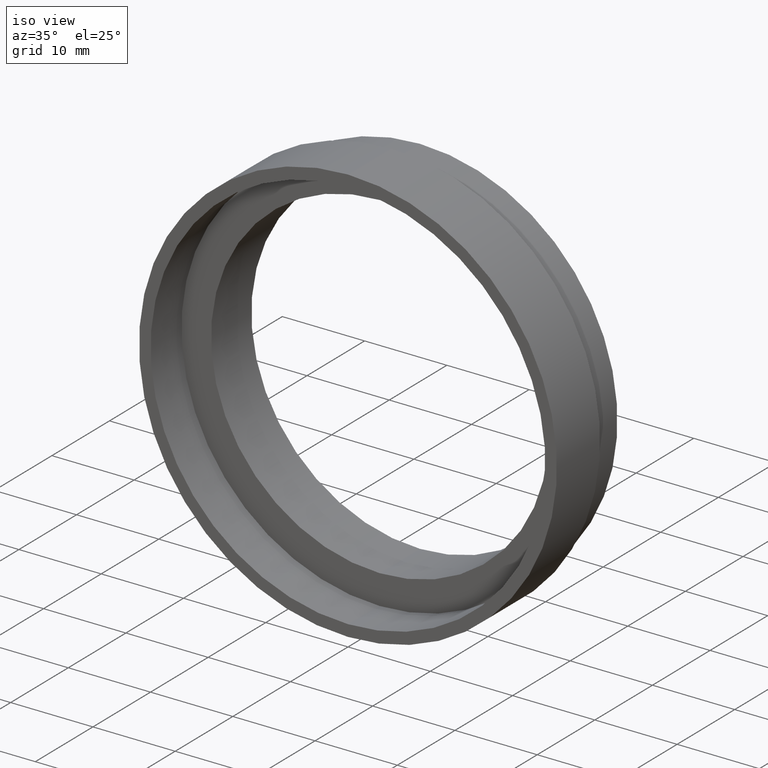
[diagram: clean part render]
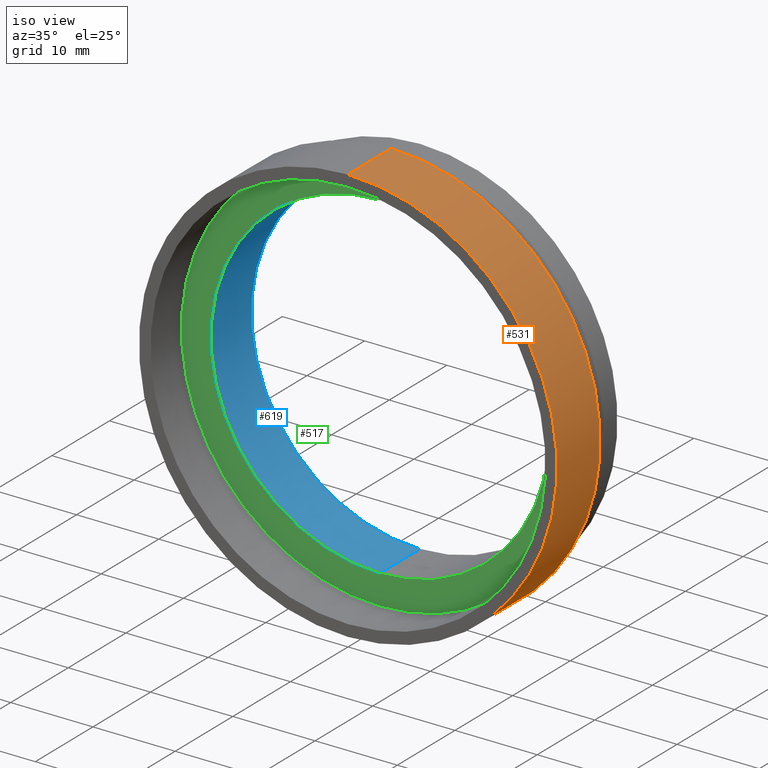
[diagram: same view with three faces highlighted in distinct colors, each labeled with its STEP entity id]
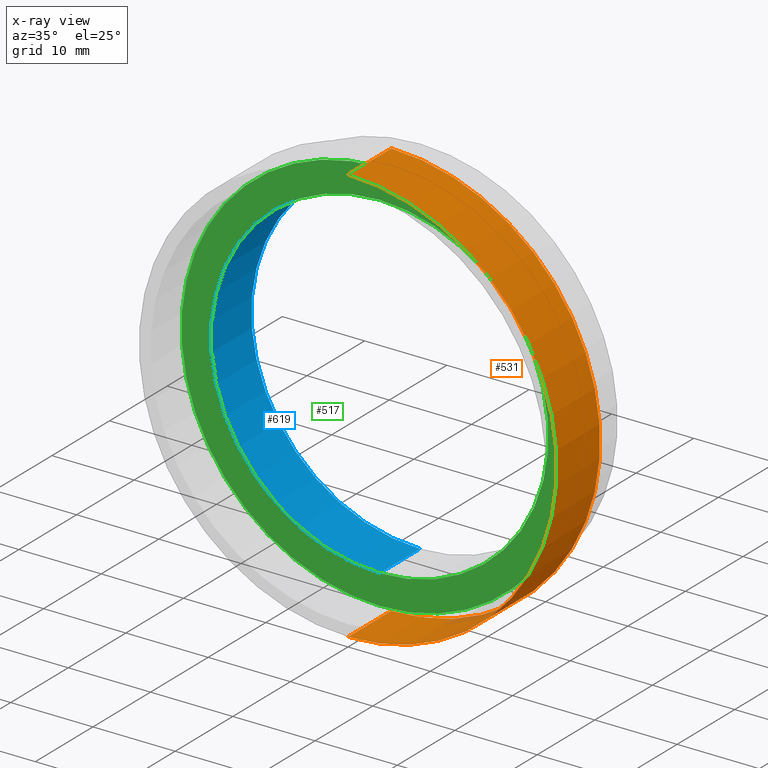
[diagram: x-ray of the same camera — body ghosted, the three highlighted faces saturated]
A machine part, iso view with three faces highlighted in distinct colors.
The next image is the same camera in x-ray (body ghosted, the three faces saturated) — at least one of them is partly hidden behind the body in this view.
Their STEP definitions:

[orange] entity #531 — the highlighted cylindrical surface (partial cylindrical patch) has radius 25.4 mm, axis along (-0, 1, -0).
#61 = CARTESIAN_POINT ( 'NONE',  ( 0.0000000000000000000, 7.499999999999978700, 0.0000000000000000000 ) ) ;
#68 = ORIENTED_EDGE ( 'NONE', *, *, #248, .F. ) ;
#73 = CARTESIAN_POINT ( 'NONE',  ( 0.0000000000000000000, 7.499999999999978700, 25.40000000000001600 ) ) ;
#93 = VERTEX_POINT ( 'NONE', #303 ) ;
#101 = AXIS2_PLACEMENT_3D ( 'NONE', #390, #588, #578 ) ;
#137 = VERTEX_POINT ( 'NONE', #585 ) ;
#142 = ORIENTED_EDGE ( 'NONE', *, *, #275, .T. ) ;
#144 = AXIS2_PLACEMENT_3D ( 'NONE', #61, #150, #153 ) ;
#150 = DIRECTION ( 'NONE',  ( -0.0000000000000000000, 1.000000000000000000, -0.0000000000000000000 ) ) ;
#153 = DIRECTION ( 'NONE',  ( 0.0000000000000000000, 0.0000000000000000000, 1.000000000000000000 ) ) ;
#213 = FACE_OUTER_BOUND ( 'NONE', #325, .T. ) ;
#220 = CARTESIAN_POINT ( 'NONE',  ( 3.110602869834279600E-015, 161.3761669434274500, -25.40000000000002000 ) ) ;
#239 = ORIENTED_EDGE ( 'NONE', *, *, #469, .T. ) ;
#240 = EDGE_CURVE ( 'NONE', #427, #137, #249, .T. ) ;
#248 = EDGE_CURVE ( 'NONE', #471, #427, #520, .T. ) ;
#249 = CIRCLE ( 'NONE', #144, 25.40000000000001600 ) ;
#254 = CYLINDRICAL_SURFACE ( 'NONE', #428, 25.40000000000002000 ) ;
#260 = DIRECTION ( 'NONE',  ( -0.0000000000000000000, 1.000000000000000000, -0.0000000000000000000 ) ) ;
#273 = CIRCLE ( 'NONE', #101, 25.40000000000002000 ) ;
#275 = EDGE_CURVE ( 'NONE', #471, #93, #273, .T. ) ;
#303 = CARTESIAN_POINT ( 'NONE',  ( 3.110602869834279600E-015, -2.775557561562891400E-014, -25.40000000000002000 ) ) ;
#306 = DIRECTION ( 'NONE',  ( -0.0000000000000000000, 1.000000000000000000, -0.0000000000000000000 ) ) ;
#325 = EDGE_LOOP ( 'NONE', ( #142, #239, #535, #68 ) ) ;
#326 = CARTESIAN_POINT ( 'NONE',  ( 0.0000000000000000000, 161.3761669434274500, 0.0000000000000000000 ) ) ;
#368 = VECTOR ( 'NONE', #306, 1000.000000000000000 ) ;
#375 = DIRECTION ( 'NONE',  ( 0.0000000000000000000, 0.0000000000000000000, 1.000000000000000000 ) ) ;
#390 = CARTESIAN_POINT ( 'NONE',  ( 0.0000000000000000000, -2.775557561562891400E-014, 0.0000000000000000000 ) ) ;
#427 = VERTEX_POINT ( 'NONE', #73 ) ;
#428 = AXIS2_PLACEMENT_3D ( 'NONE', #326, #610, #375 ) ;
#469 = EDGE_CURVE ( 'NONE', #93, #137, #478, .T. ) ;
#471 = VERTEX_POINT ( 'NONE', #545 ) ;
#478 = LINE ( 'NONE', #220, #613 ) ;
#520 = LINE ( 'NONE', #536, #368 ) ;
#531 = ADVANCED_FACE ( 'NONE', ( #213 ), #254, .T. ) ;
#535 = ORIENTED_EDGE ( 'NONE', *, *, #240, .F. ) ;
#536 = CARTESIAN_POINT ( 'NONE',  ( 0.0000000000000000000, 161.3761669434274500, 25.40000000000002000 ) ) ;
#545 = CARTESIAN_POINT ( 'NONE',  ( 0.0000000000000000000, -2.775557561562891400E-014, 25.40000000000002000 ) ) ;
#578 = DIRECTION ( 'NONE',  ( 0.0000000000000000000, 0.0000000000000000000, 1.000000000000000000 ) ) ;
#585 = CARTESIAN_POINT ( 'NONE',  ( 3.110602869834279200E-015, 7.499999999999978700, -25.40000000000001600 ) ) ;
#588 = DIRECTION ( 'NONE',  ( -0.0000000000000000000, 1.000000000000000000, -0.0000000000000000000 ) ) ;
#610 = DIRECTION ( 'NONE',  ( -0.0000000000000000000, 1.000000000000000000, -0.0000000000000000000 ) ) ;
#613 = VECTOR ( 'NONE', #260, 1000.000000000000000 ) ;

[blue] entity #619 — the highlighted cylindrical surface (partial cylindrical patch) has radius 20.5 mm, axis along (-0, 1, -0).
#3 = DIRECTION ( 'NONE',  ( -0.0000000000000000000, 1.000000000000000000, -0.0000000000000000000 ) ) ;
#10 = AXIS2_PLACEMENT_3D ( 'NONE', #85, #624, #92 ) ;
#17 = CARTESIAN_POINT ( 'NONE',  ( 2.510525938252076100E-015, 161.3761669434274500, -20.50000000000001800 ) ) ;
#35 = VERTEX_POINT ( 'NONE', #492 ) ;
#79 = CARTESIAN_POINT ( 'NONE',  ( 0.0000000000000000000, 161.3761669434274500, 20.50000000000001800 ) ) ;
#80 = EDGE_CURVE ( 'NONE', #35, #473, #587, .T. ) ;
#85 = CARTESIAN_POINT ( 'NONE',  ( 0.0000000000000000000, 161.3761669434274500, 0.0000000000000000000 ) ) ;
#92 = DIRECTION ( 'NONE',  ( 0.0000000000000000000, 0.0000000000000000000, 1.000000000000000000 ) ) ;
#94 = EDGE_LOOP ( 'NONE', ( #236, #237, #114, #287 ) ) ;
#109 = CARTESIAN_POINT ( 'NONE',  ( 2.510525938252076100E-015, 12.49999999999998400, -20.50000000000001800 ) ) ;
#111 = CARTESIAN_POINT ( 'NONE',  ( 0.0000000000000000000, 5.499999999999976900, 0.0000000000000000000 ) ) ;
#114 = ORIENTED_EDGE ( 'NONE', *, *, #481, .T. ) ;
#124 = EDGE_CURVE ( 'NONE', #35, #572, #190, .T. ) ;
#130 = DIRECTION ( 'NONE',  ( -0.0000000000000000000, 1.000000000000000000, -0.0000000000000000000 ) ) ;
#132 = DIRECTION ( 'NONE',  ( 0.0000000000000000000, 0.0000000000000000000, 1.000000000000000000 ) ) ;
#139 = AXIS2_PLACEMENT_3D ( 'NONE', #111, #259, #442 ) ;
#190 = CIRCLE ( 'NONE', #139, 20.50000000000001800 ) ;
#202 = VECTOR ( 'NONE', #3, 1000.000000000000000 ) ;
#212 = CYLINDRICAL_SURFACE ( 'NONE', #10, 20.50000000000001800 ) ;
#230 = CARTESIAN_POINT ( 'NONE',  ( 0.0000000000000000000, 12.49999999999998400, 20.50000000000001800 ) ) ;
#236 = ORIENTED_EDGE ( 'NONE', *, *, #124, .F. ) ;
#237 = ORIENTED_EDGE ( 'NONE', *, *, #80, .T. ) ;
#259 = DIRECTION ( 'NONE',  ( -0.0000000000000000000, 1.000000000000000000, -0.0000000000000000000 ) ) ;
#287 = ORIENTED_EDGE ( 'NONE', *, *, #595, .F. ) ;
#329 = CARTESIAN_POINT ( 'NONE',  ( 0.0000000000000000000, 12.49999999999998400, 0.0000000000000000000 ) ) ;
#359 = VECTOR ( 'NONE', #513, 1000.000000000000000 ) ;
#437 = AXIS2_PLACEMENT_3D ( 'NONE', #329, #130, #132 ) ;
#442 = DIRECTION ( 'NONE',  ( 0.0000000000000000000, 0.0000000000000000000, 1.000000000000000000 ) ) ;
#473 = VERTEX_POINT ( 'NONE', #109 ) ;
#481 = EDGE_CURVE ( 'NONE', #473, #573, #564, .T. ) ;
#492 = CARTESIAN_POINT ( 'NONE',  ( 2.510525938252076100E-015, 5.499999999999976900, -20.50000000000001800 ) ) ;
#497 = LINE ( 'NONE', #79, #359 ) ;
#509 = CARTESIAN_POINT ( 'NONE',  ( 0.0000000000000000000, 5.499999999999976900, 20.50000000000001800 ) ) ;
#513 = DIRECTION ( 'NONE',  ( -0.0000000000000000000, 1.000000000000000000, -0.0000000000000000000 ) ) ;
#564 = CIRCLE ( 'NONE', #437, 20.50000000000001800 ) ;
#572 = VERTEX_POINT ( 'NONE', #509 ) ;
#573 = VERTEX_POINT ( 'NONE', #230 ) ;
#587 = LINE ( 'NONE', #17, #202 ) ;
#595 = EDGE_CURVE ( 'NONE', #572, #573, #497, .T. ) ;
#611 = FACE_OUTER_BOUND ( 'NONE', #94, .T. ) ;
#619 = ADVANCED_FACE ( 'NONE', ( #611 ), #212, .F. ) ;
#624 = DIRECTION ( 'NONE',  ( -0.0000000000000000000, 1.000000000000000000, -0.0000000000000000000 ) ) ;

[green] entity #517 — the highlighted planar face has unit normal (-0, 1, 0).
#23 = AXIS2_PLACEMENT_3D ( 'NONE', #37, #411, #515 ) ;
#35 = VERTEX_POINT ( 'NONE', #492 ) ;
#37 = CARTESIAN_POINT ( 'NONE',  ( 0.0000000000000000000, 5.499999999999976900, 0.0000000000000000000 ) ) ;
#55 = EDGE_CURVE ( 'NONE', #406, #56, #81, .T. ) ;
#56 = VERTEX_POINT ( 'NONE', #593 ) ;
#71 = CIRCLE ( 'NONE', #23, 24.10000000000001600 ) ;
#81 = CIRCLE ( 'NONE', #177, 24.10000000000001600 ) ;
#104 = CARTESIAN_POINT ( 'NONE',  ( 0.0000000000000000000, 5.499999999999976900, 0.0000000000000000000 ) ) ;
#111 = CARTESIAN_POINT ( 'NONE',  ( 0.0000000000000000000, 5.499999999999976900, 0.0000000000000000000 ) ) ;
#115 = DIRECTION ( 'NONE',  ( -0.0000000000000000000, 1.000000000000000000, -0.0000000000000000000 ) ) ;
#124 = EDGE_CURVE ( 'NONE', #35, #572, #190, .T. ) ;
#139 = AXIS2_PLACEMENT_3D ( 'NONE', #111, #259, #442 ) ;
#177 = AXIS2_PLACEMENT_3D ( 'NONE', #353, #115, #210 ) ;
#178 = CARTESIAN_POINT ( 'NONE',  ( 24.10000000000001600, 5.499999999999985800, 0.0000000000000000000 ) ) ;
#190 = CIRCLE ( 'NONE', #139, 20.50000000000001800 ) ;
#208 = ORIENTED_EDGE ( 'NONE', *, *, #124, .T. ) ;
#210 = DIRECTION ( 'NONE',  ( 0.0000000000000000000, 0.0000000000000000000, 1.000000000000000000 ) ) ;
#238 = EDGE_CURVE ( 'NONE', #572, #35, #304, .T. ) ;
#259 = DIRECTION ( 'NONE',  ( -0.0000000000000000000, 1.000000000000000000, -0.0000000000000000000 ) ) ;
#276 = DIRECTION ( 'NONE',  ( 0.0000000000000000000, 0.0000000000000000000, 1.000000000000000000 ) ) ;
#285 = ORIENTED_EDGE ( 'NONE', *, *, #501, .F. ) ;
#304 = CIRCLE ( 'NONE', #551, 20.50000000000001800 ) ;
#330 = PLANE ( 'NONE',  #449 ) ;
#339 = ORIENTED_EDGE ( 'NONE', *, *, #238, .T. ) ;
#352 = ORIENTED_EDGE ( 'NONE', *, *, #55, .F. ) ;
#353 = CARTESIAN_POINT ( 'NONE',  ( 0.0000000000000000000, 5.499999999999976900, 0.0000000000000000000 ) ) ;
#370 = DIRECTION ( 'NONE',  ( -0.0000000000000000000, 1.000000000000000000, 0.0000000000000000000 ) ) ;
#406 = VERTEX_POINT ( 'NONE', #496 ) ;
#411 = DIRECTION ( 'NONE',  ( -0.0000000000000000000, 1.000000000000000000, -0.0000000000000000000 ) ) ;
#416 = FACE_BOUND ( 'NONE', #516, .T. ) ;
#440 = DIRECTION ( 'NONE',  ( -0.0000000000000000000, 1.000000000000000000, -0.0000000000000000000 ) ) ;
#442 = DIRECTION ( 'NONE',  ( 0.0000000000000000000, 0.0000000000000000000, 1.000000000000000000 ) ) ;
#449 = AXIS2_PLACEMENT_3D ( 'NONE', #178, #370, #276 ) ;
#492 = CARTESIAN_POINT ( 'NONE',  ( 2.510525938252076100E-015, 5.499999999999976900, -20.50000000000001800 ) ) ;
#496 = CARTESIAN_POINT ( 'NONE',  ( 0.0000000000000000000, 5.499999999999976900, 24.10000000000001600 ) ) ;
#501 = EDGE_CURVE ( 'NONE', #56, #406, #71, .T. ) ;
#509 = CARTESIAN_POINT ( 'NONE',  ( 0.0000000000000000000, 5.499999999999976900, 20.50000000000001800 ) ) ;
#515 = DIRECTION ( 'NONE',  ( 0.0000000000000000000, 0.0000000000000000000, 1.000000000000000000 ) ) ;
#516 = EDGE_LOOP ( 'NONE', ( #339, #208 ) ) ;
#517 = ADVANCED_FACE ( 'NONE', ( #519, #416 ), #330, .F. ) ;
#519 = FACE_OUTER_BOUND ( 'NONE', #577, .T. ) ;
#551 = AXIS2_PLACEMENT_3D ( 'NONE', #104, #440, #591 ) ;
#572 = VERTEX_POINT ( 'NONE', #509 ) ;
#577 = EDGE_LOOP ( 'NONE', ( #352, #285 ) ) ;
#591 = DIRECTION ( 'NONE',  ( 0.0000000000000000000, 0.0000000000000000000, 1.000000000000000000 ) ) ;
#593 = CARTESIAN_POINT ( 'NONE',  ( 2.951398785945123200E-015, 5.499999999999976900, -24.10000000000001600 ) ) ;